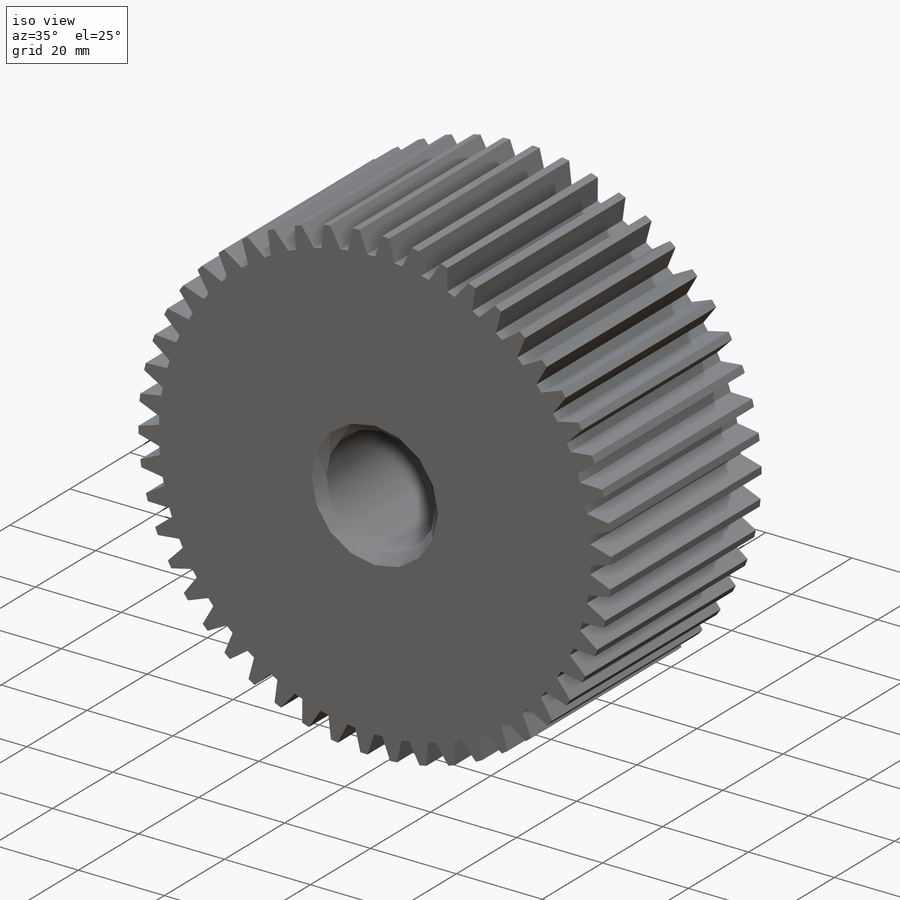
[diagram: iso view]
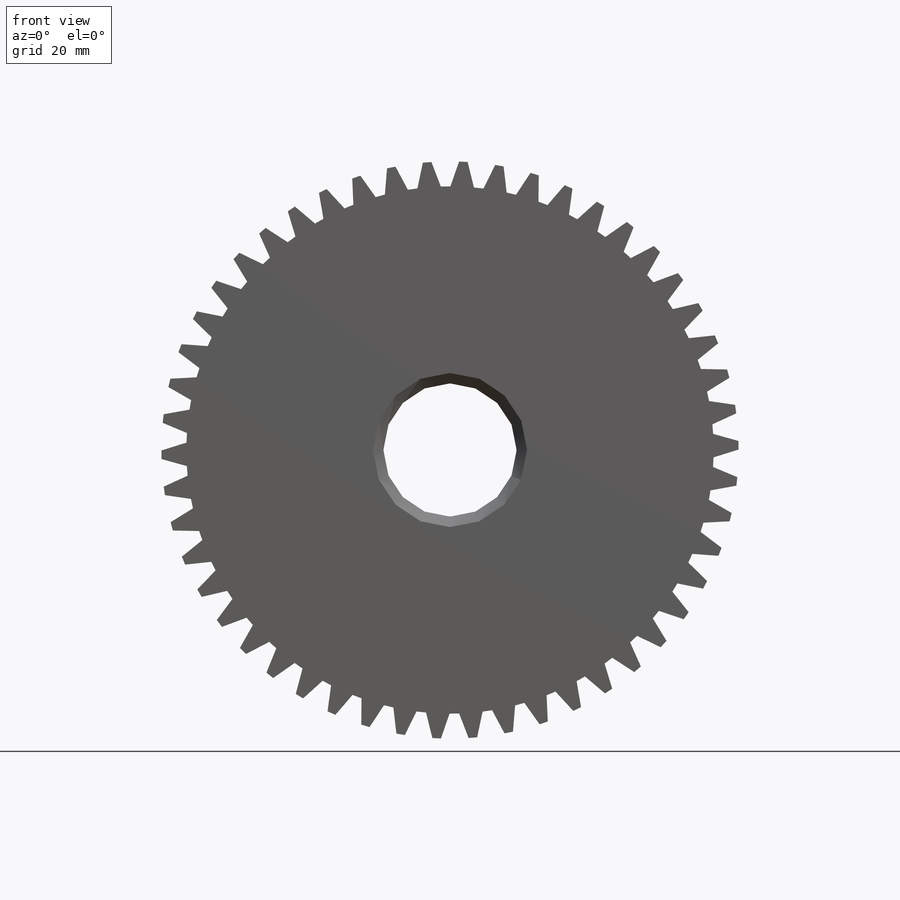
[diagram: front view]
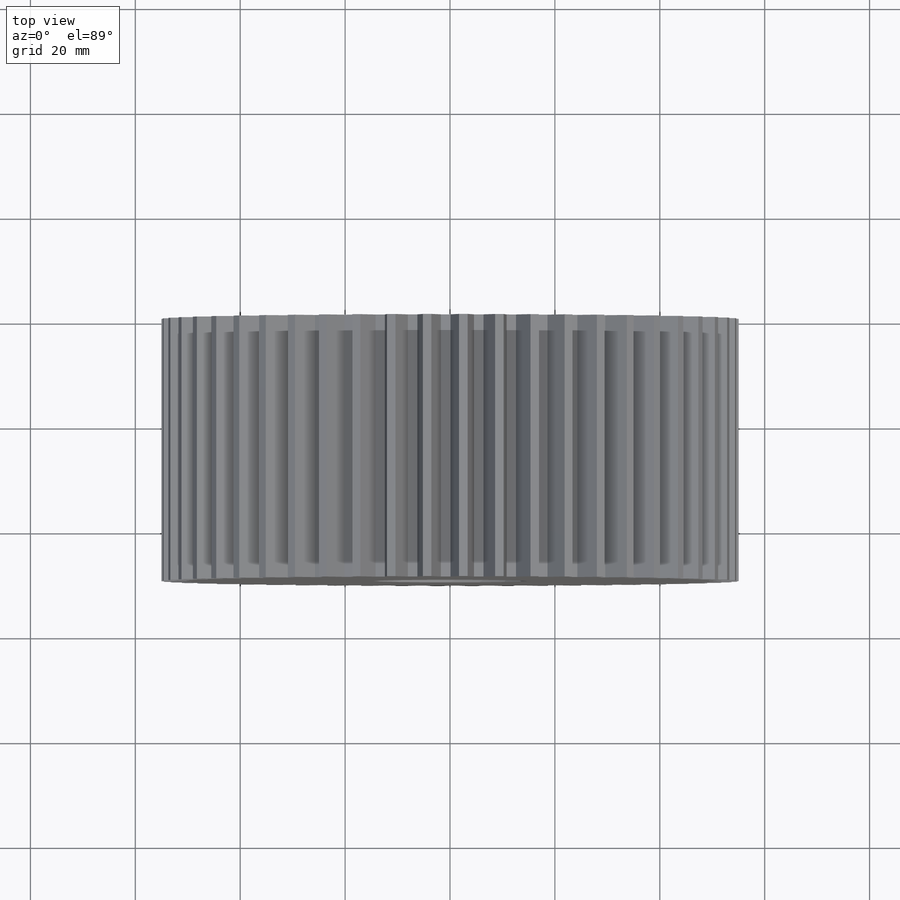
[diagram: top view]
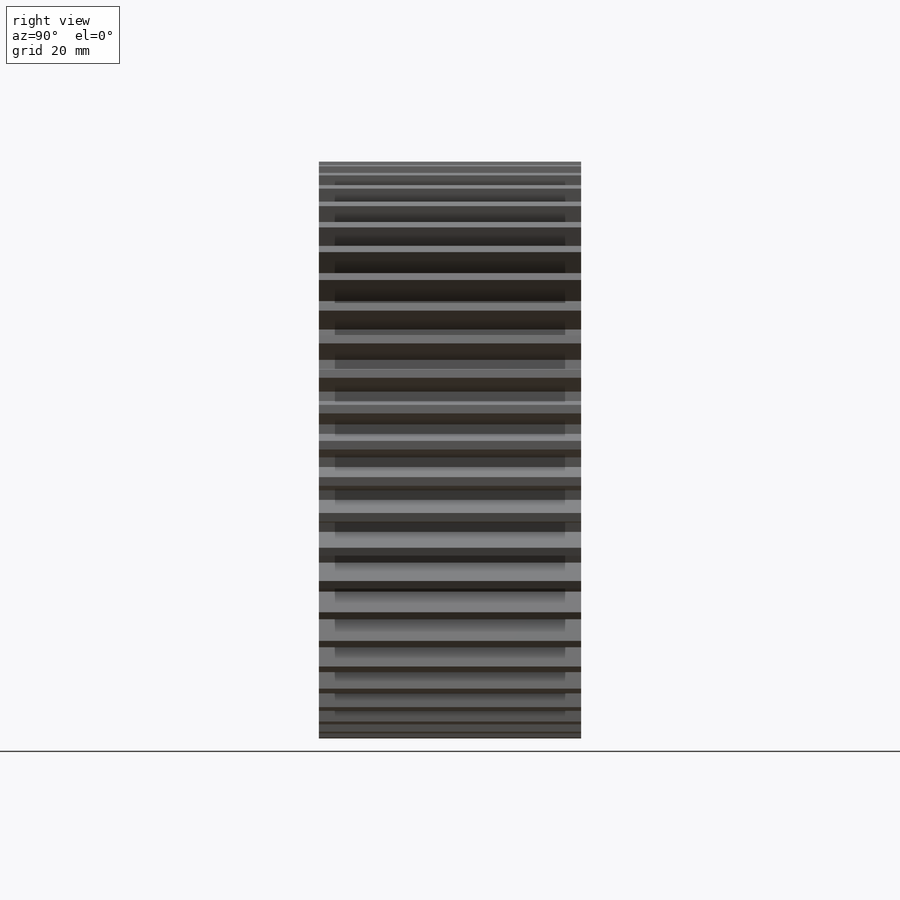
[diagram: right view]
SOLIDWORKS PART (.sldprt)
format: sldprt  version: not decoded by parser v0  size: 1,408,000 bytes
history: native  units: mm
features: sketch x7, extrude x3, cut_extrude x2, material x1, pattern_circular x1, chamfer x1, hole x1 (+13 scaffold rows collapsed)
feature tree (29):
  scaffold x13  (default folders/planes/origin — collapsed)
  material  "Material <not specified>"
  sketch  "Sketch2"  dims[D1=100.5mm]
  extrude  "gear outside diameter"  Depth=15mm
  sketch  "Sketch1"  dims[c1.D1=100.5mm c1.D2=97.5mm c1.D3=~91.620031mm c1.D7=93.75mm c1.D4=12.0mm c1.D5=~38.544264mm c2.D5=~0.853958deg c2.D6=~11.276311mm c3.D6=~1.563264deg c3.D4=~11.998667mm c4.D4=~1.384615deg c4.D7=~1.776311mm]
  cut_extrude  "gear tooth cut"  [1 undecoded]
  pattern_circular  "gear teeth"  Count=65 Angle=360deg
  sketch  "Sketch3"  dims[D1=93.75mm]
  extrude  "gear dedendum circle"  [1 undecoded]
  sketch  "Sketch4"  dims[D1=25.9mm]
  cut_extrude  "Cut-Extrude1"  [1 undecoded]
  chamfer  "Chamfer1"  Distance=1mm Angle=45deg
  hole  "#8-32 Tapped Hole1"  Diameter=3.4544mm Depth=37.3mm
  sketch  "3DSketch1"
  sketch  "Sketch5"  dims[hole-wizard template sketch: 60 standard entries collapsed; hole parameters kept: c18.Thru Tap Drill Depth=37.3mm]
  sketch  "Sketch6"  dims[D1=5.0mm]
  extrude  "Boss-Extrude1"  Depth=0.6mm
decode coverage: 11 of 15 modeling features carry decoded parameters
note: ~ marks probable driven/reference dimensions
note: 3 parameter values undecoded
summary: no parameter record found for 3 features
note: suppression state not decoded; provenance and decode notes live in map.json
